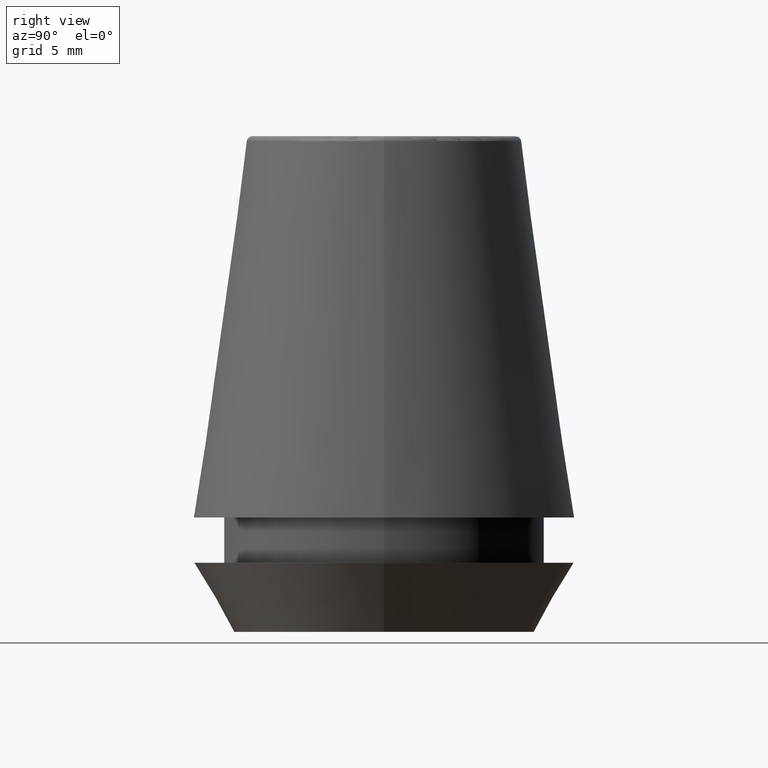
[diagram: clean part render]
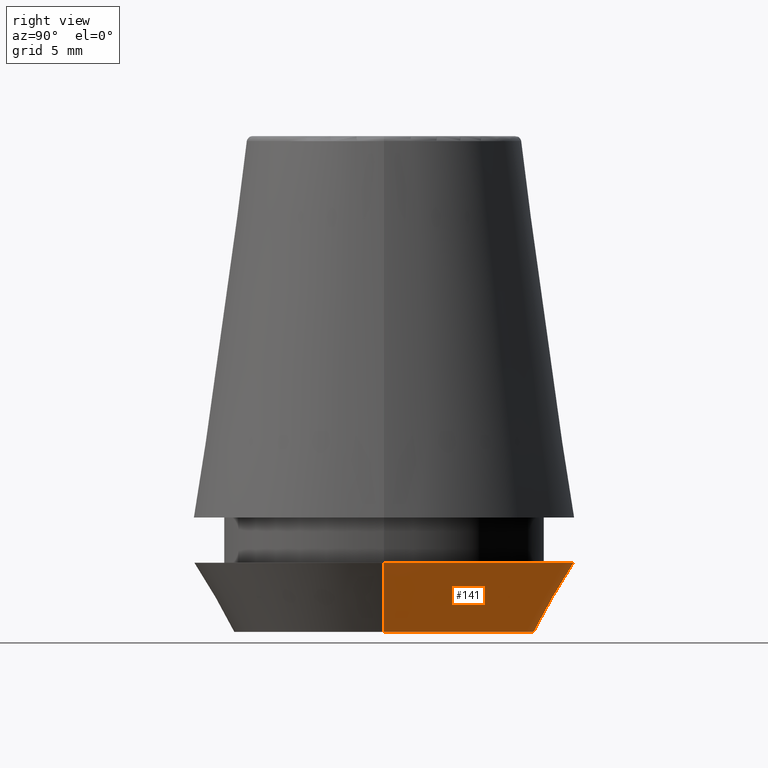
[diagram: same view with one face highlighted and labeled with its STEP entity id]
A machine part, right view. The second image highlights one B-rep face of the part: STEP entity #141.
In plain terms, the highlighted conical surface has half-angle 30 deg.
Its self-contained STEP definition (entity closure, byte-faithful):
#21 = DIRECTION ( 'NONE',  ( -0.4999999999999957800, 6.123233995736714300E-017, 0.8660254037844410400 ) ) ;
#34 = DIRECTION ( 'NONE',  ( 1.000000000000000000, 0.0000000000000000000, 0.0000000000000000000 ) ) ;
#38 = DIRECTION ( 'NONE',  ( -0.0000000000000000000, -0.0000000000000000000, 1.000000000000000000 ) ) ;
#43 = CONICAL_SURFACE ( 'NONE', #270, 10.26217568973925200, 0.5235987755982940400 ) ;
#57 = VECTOR ( 'NONE', #21, 1000.000000000000200 ) ;
#60 = DIRECTION ( 'NONE',  ( 0.4999999999999957800, 0.0000000000000000000, 0.8660254037844410400 ) ) ;
#65 = DIRECTION ( 'NONE',  ( -0.0000000000000000000, -0.0000000000000000000, 1.000000000000000000 ) ) ;
#67 = VECTOR ( 'NONE', #60, 1000.000000000000200 ) ;
#74 = CARTESIAN_POINT ( 'NONE',  ( -10.26217568973925200, 1.424397449982127500E-015, 0.0000000000000000000 ) ) ;
#95 = CARTESIAN_POINT ( 'NONE',  ( 10.26217568973925200, 0.0000000000000000000, 0.0000000000000000000 ) ) ;
#99 = CARTESIAN_POINT ( 'NONE',  ( 0.0000000000000000000, 0.0000000000000000000, 4.742050807568884500 ) ) ;
#101 = CARTESIAN_POINT ( 'NONE',  ( -13.00000000000000000, 1.592040838891559100E-015, 4.742050807568884500 ) ) ;
#112 = CARTESIAN_POINT ( 'NONE',  ( 13.00000000000000000, 0.0000000000000000000, 4.742050807568884500 ) ) ;
#139 = VERTEX_POINT ( 'NONE', #74 ) ;
#141 = ADVANCED_FACE ( 'NONE', ( #363 ), #43, .T. ) ;
#154 = VERTEX_POINT ( 'NONE', #187 ) ;
#171 = CARTESIAN_POINT ( 'NONE',  ( -10.26217568973925200, 1.256754061072695800E-015, 0.0000000000000000000 ) ) ;
#179 = CIRCLE ( 'NONE', #263, 13.00000000000000000 ) ;
#187 = CARTESIAN_POINT ( 'NONE',  ( 10.26217568973925200, 0.0000000000000000000, 0.0000000000000000000 ) ) ;
#205 = DIRECTION ( 'NONE',  ( -0.0000000000000000000, -0.0000000000000000000, 1.000000000000000000 ) ) ;
#222 = VERTEX_POINT ( 'NONE', #101 ) ;
#230 = EDGE_LOOP ( 'NONE', ( #374, #286, #336, #318 ) ) ;
#235 = DIRECTION ( 'NONE',  ( 1.000000000000000000, 0.0000000000000000000, 0.0000000000000000000 ) ) ;
#260 = AXIS2_PLACEMENT_3D ( 'NONE', #386, #205, #235 ) ;
#263 = AXIS2_PLACEMENT_3D ( 'NONE', #99, #65, #34 ) ;
#264 = DIRECTION ( 'NONE',  ( 1.000000000000000000, 0.0000000000000000000, 0.0000000000000000000 ) ) ;
#269 = LINE ( 'NONE', #171, #57 ) ;
#270 = AXIS2_PLACEMENT_3D ( 'NONE', #329, #38, #264 ) ;
#286 = ORIENTED_EDGE ( 'NONE', *, *, #384, .T. ) ;
#292 = CIRCLE ( 'NONE', #260, 10.26217568973925200 ) ;
#294 = EDGE_CURVE ( 'NONE', #387, #222, #179, .T. ) ;
#318 = ORIENTED_EDGE ( 'NONE', *, *, #379, .F. ) ;
#329 = CARTESIAN_POINT ( 'NONE',  ( 0.0000000000000000000, 0.0000000000000000000, 0.0000000000000000000 ) ) ;
#336 = ORIENTED_EDGE ( 'NONE', *, *, #294, .F. ) ;
#361 = EDGE_CURVE ( 'NONE', #154, #139, #292, .T. ) ;
#363 = FACE_OUTER_BOUND ( 'NONE', #230, .T. ) ;
#367 = LINE ( 'NONE', #95, #67 ) ;
#374 = ORIENTED_EDGE ( 'NONE', *, *, #361, .T. ) ;
#379 = EDGE_CURVE ( 'NONE', #154, #387, #367, .T. ) ;
#384 = EDGE_CURVE ( 'NONE', #139, #222, #269, .T. ) ;
#386 = CARTESIAN_POINT ( 'NONE',  ( 0.0000000000000000000, 0.0000000000000000000, 0.0000000000000000000 ) ) ;
#387 = VERTEX_POINT ( 'NONE', #112 ) ;